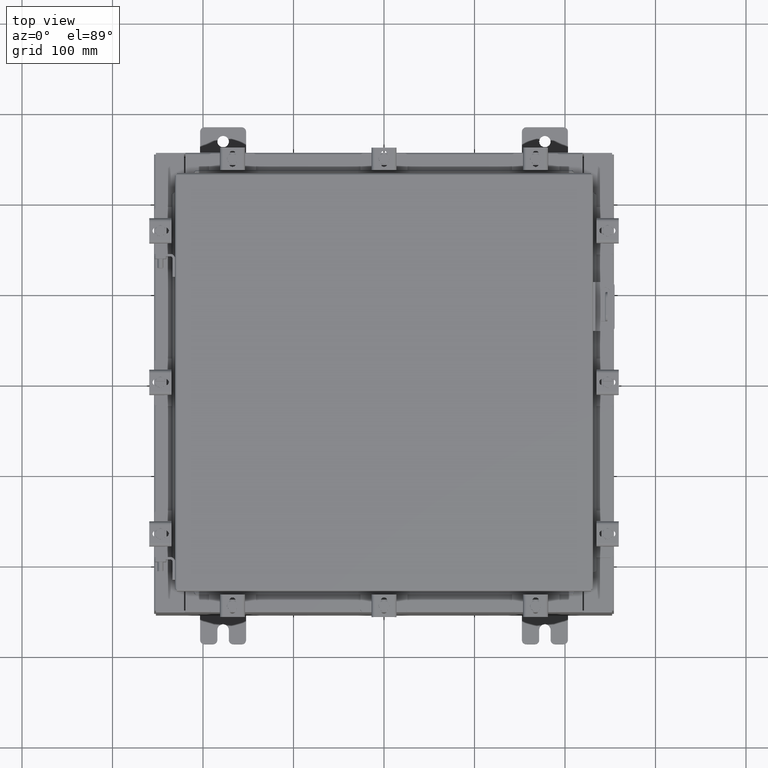
[diagram: clean part render]
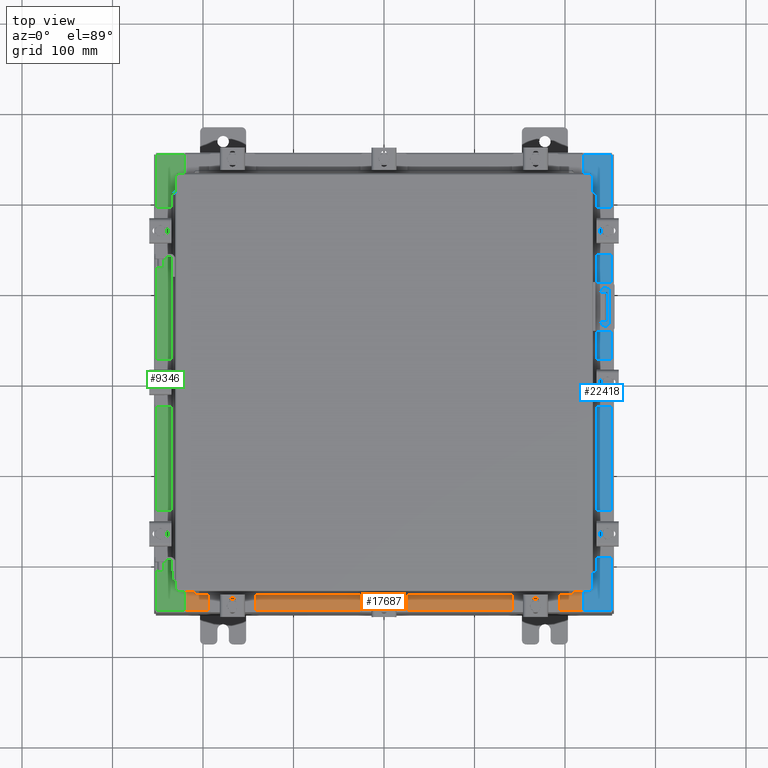
[diagram: same view with three faces highlighted in distinct colors, each labeled with its STEP entity id]
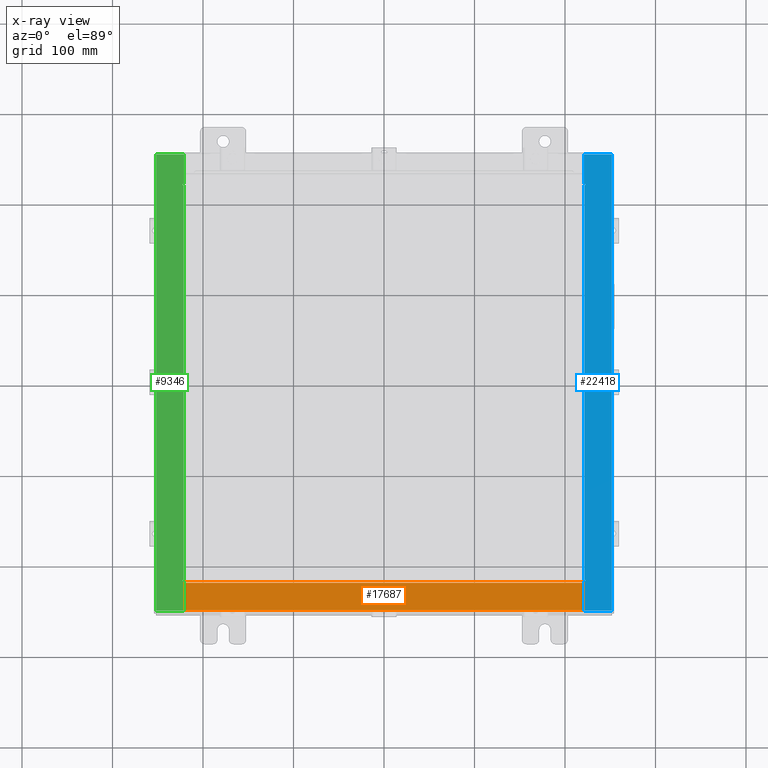
[diagram: x-ray of the same camera — body ghosted, the three highlighted faces saturated]
A machine part, top view with three faces highlighted in distinct colors.
The next image is the same camera in x-ray (body ghosted, the three faces saturated) — at least one of them is partly hidden behind the body in this view.
Their STEP definitions:

[orange] entity #17687 — the highlighted planar face has unit normal (-0, -0, 1).
#217 = EDGE_CURVE ( 'NONE', #20153, #8931, #19345, .T. ) ;
#790 = ORIENTED_EDGE ( 'NONE', *, *, #8295, .F. ) ;
#1097 = VECTOR ( 'NONE', #22316, 39.37007874015748100 ) ;
#3369 = CARTESIAN_POINT ( 'NONE',  ( 8.637200000000000000, -1.287299999999999900, 4.000000000000004400 ) ) ;
#3478 = VECTOR ( 'NONE', #14065, 39.37007874015748100 ) ;
#4583 = VERTEX_POINT ( 'NONE', #14635 ) ;
#4813 = ORIENTED_EDGE ( 'NONE', *, *, #217, .F. ) ;
#4828 = VECTOR ( 'NONE', #14450, 39.37007874015748100 ) ;
#7943 = CARTESIAN_POINT ( 'NONE',  ( -2.773851121247567100E-018, -0.08770000000000000000, 4.000000000000000900 ) ) ;
#8295 = EDGE_CURVE ( 'NONE', #10488, #20153, #22083, .T. ) ;
#8716 = CARTESIAN_POINT ( 'NONE',  ( 8.637200000000000000, -1.300299999999999800, 4.000000000000004400 ) ) ;
#8755 = LINE ( 'NONE', #10126, #1097 ) ;
#8931 = VERTEX_POINT ( 'NONE', #20531 ) ;
#9593 = DIRECTION ( 'NONE',  ( 0.0000000000000000000, 3.566381192773190000E-015, 1.000000000000000000 ) ) ;
#10126 = CARTESIAN_POINT ( 'NONE',  ( -8.637200000000000000, -0.07469999999999973900, 4.000000000000000000 ) ) ;
#10488 = VERTEX_POINT ( 'NONE', #15904 ) ;
#11515 = VECTOR ( 'NONE', #18354, 39.37007874015748100 ) ;
#12523 = EDGE_LOOP ( 'NONE', ( #16459, #4813, #790, #14875 ) ) ;
#14065 = DIRECTION ( 'NONE',  ( -0.0000000000000000000, -1.000000000000000000, 3.566381192773190000E-015 ) ) ;
#14319 = EDGE_CURVE ( 'NONE', #10488, #4583, #17807, .T. ) ;
#14450 = DIRECTION ( 'NONE',  ( -1.000000000000000000, 0.0000000000000000000, 0.0000000000000000000 ) ) ;
#14474 = CARTESIAN_POINT ( 'NONE',  ( 8.637200000000000000, -1.287299999999999900, 4.000000000000003600 ) ) ;
#14635 = CARTESIAN_POINT ( 'NONE',  ( -8.637200000000000000, -0.08770000000000000000, 4.000000000000000000 ) ) ;
#14875 = ORIENTED_EDGE ( 'NONE', *, *, #14319, .T. ) ;
#15145 = FACE_OUTER_BOUND ( 'NONE', #12523, .T. ) ;
#15904 = CARTESIAN_POINT ( 'NONE',  ( 8.637200000000000000, -0.08769999999999965300, 4.000000000000000000 ) ) ;
#16459 = ORIENTED_EDGE ( 'NONE', *, *, #20023, .F. ) ;
#17687 = ADVANCED_FACE ( 'NONE', ( #15145 ), #20049, .T. ) ;
#17807 = LINE ( 'NONE', #7943, #11515 ) ;
#18354 = DIRECTION ( 'NONE',  ( -1.000000000000000000, 3.162886113166609200E-017, -1.128005754888089100E-031 ) ) ;
#18564 = AXIS2_PLACEMENT_3D ( 'NONE', #21710, #9593, #21796 ) ;
#19345 = LINE ( 'NONE', #14474, #4828 ) ;
#20023 = EDGE_CURVE ( 'NONE', #8931, #4583, #8755, .T. ) ;
#20049 = PLANE ( 'NONE',  #18564 ) ;
#20153 = VERTEX_POINT ( 'NONE', #3369 ) ;
#20531 = CARTESIAN_POINT ( 'NONE',  ( -8.637200000000000000, -1.287299999999999200, 4.000000000000004400 ) ) ;
#21710 = CARTESIAN_POINT ( 'NONE',  ( 0.0000000000000000000, 1.425992975200418500E-014, 4.000000000000000000 ) ) ;
#21796 = DIRECTION ( 'NONE',  ( 0.0000000000000000000, -1.000000000000000000, 3.566381192773190000E-015 ) ) ;
#22083 = LINE ( 'NONE', #8716, #3478 ) ;
#22316 = DIRECTION ( 'NONE',  ( -0.0000000000000000000, 1.000000000000000000, -3.566381192773190000E-015 ) ) ;

[blue] entity #22418 — the highlighted planar face has unit normal (-0, 0, -1).
#19 = CARTESIAN_POINT ( 'NONE',  ( 5.679009539018279500E-014, 9.925299999999996500, 7.925300000000071100 ) ) ;
#504 = EDGE_LOOP ( 'NONE', ( #20579, #8065, #14720, #18478, #13156, #19387, #21814, #1746, #4850, #20859, #18546, #19200 ) ) ;
#727 = LINE ( 'NONE', #7852, #18784 ) ;
#769 = LINE ( 'NONE', #6461, #19363 ) ;
#1463 = DIRECTION ( 'NONE',  ( -1.000000000000000000, 0.0000000000000000000, 0.0000000000000000000 ) ) ;
#1501 = VERTEX_POINT ( 'NONE', #9264 ) ;
#1537 = VERTEX_POINT ( 'NONE', #7240 ) ;
#1746 = ORIENTED_EDGE ( 'NONE', *, *, #7325, .F. ) ;
#1966 = CARTESIAN_POINT ( 'NONE',  ( 8.699700000000028400, 8.631099999999994700, 7.925300000000008900 ) ) ;
#2117 = EDGE_CURVE ( 'NONE', #10660, #14955, #16663, .T. ) ;
#2211 = DIRECTION ( 'NONE',  ( -0.0000000000000000000, -1.000000000000000000, -0.0000000000000000000 ) ) ;
#2236 = CARTESIAN_POINT ( 'NONE',  ( 5.679009539018279500E-014, -9.925300000000001800, 7.925300000000071100 ) ) ;
#2426 = EDGE_CURVE ( 'NONE', #10660, #9918, #769, .T. ) ;
#2499 = LINE ( 'NONE', #20727, #20540 ) ;
#2721 = VECTOR ( 'NONE', #13410, 39.37007874015748100 ) ;
#2739 = EDGE_CURVE ( 'NONE', #1501, #8294, #13870, .T. ) ;
#2862 = EDGE_CURVE ( 'NONE', #14574, #9918, #20967, .T. ) ;
#2870 = CARTESIAN_POINT ( 'NONE',  ( 8.699700000000030200, 9.578051238947307000E-016, 7.925300000000008900 ) ) ;
#3282 = DIRECTION ( 'NONE',  ( 1.000000000000000000, 0.0000000000000000000, 0.0000000000000000000 ) ) ;
#3391 = PLANE ( 'NONE',  #22097 ) ;
#3449 = EDGE_CURVE ( 'NONE', #8294, #8524, #727, .T. ) ;
#3459 = DIRECTION ( 'NONE',  ( 1.000000000000000000, 0.0000000000000000000, -7.132762385546378400E-015 ) ) ;
#3834 = LINE ( 'NONE', #7610, #17847 ) ;
#4334 = VECTOR ( 'NONE', #20176, 39.37007874015748100 ) ;
#4337 = EDGE_CURVE ( 'NONE', #6905, #13162, #9721, .T. ) ;
#4822 = CARTESIAN_POINT ( 'NONE',  ( 8.750050000000031900, -8.612425000000005300, 7.925300000000008900 ) ) ;
#4850 = ORIENTED_EDGE ( 'NONE', *, *, #6149, .F. ) ;
#5056 = AXIS2_PLACEMENT_3D ( 'NONE', #4822, #17073, #6581 ) ;
#5315 = DIRECTION ( 'NONE',  ( -1.000000000000000000, 0.0000000000000000000, 7.132762385546378400E-015 ) ) ;
#5564 = CARTESIAN_POINT ( 'NONE',  ( 8.750050000000031900, 8.631099999999994700, 7.925300000000008900 ) ) ;
#5753 = CARTESIAN_POINT ( 'NONE',  ( 8.750050000000031900, 8.612424999999992900, 7.925300000000008900 ) ) ;
#5845 = EDGE_CURVE ( 'NONE', #14955, #13162, #3834, .T. ) ;
#5880 = CARTESIAN_POINT ( 'NONE',  ( 9.912300000000028500, -9.925300000000001800, 7.925300000000000000 ) ) ;
#5949 = DIRECTION ( 'NONE',  ( -1.000000000000000000, 2.170286390199861100E-014, 0.0000000000000000000 ) ) ;
#6149 = EDGE_CURVE ( 'NONE', #8524, #9531, #2499, .T. ) ;
#6461 = CARTESIAN_POINT ( 'NONE',  ( 9.912300000000028500, -9.925300000000001800, 7.925300000000000000 ) ) ;
#6581 = DIRECTION ( 'NONE',  ( 1.000000000000000000, 0.0000000000000000000, 0.0000000000000000000 ) ) ;
#6724 = DIRECTION ( 'NONE',  ( -1.000000000000000000, 0.0000000000000000000, 7.132762385546378400E-015 ) ) ;
#6905 = VERTEX_POINT ( 'NONE', #16587 ) ;
#6996 = CARTESIAN_POINT ( 'NONE',  ( 5.679009539018279500E-014, 0.0000000000000000000, 7.925300000000071100 ) ) ;
#7240 = CARTESIAN_POINT ( 'NONE',  ( 8.699700000000030200, -8.631100000000005300, 7.925300000000008900 ) ) ;
#7325 = EDGE_CURVE ( 'NONE', #9531, #6905, #16961, .T. ) ;
#7518 = DIRECTION ( 'NONE',  ( 1.000000000000000000, 0.0000000000000000000, 0.0000000000000000000 ) ) ;
#7593 = DIRECTION ( 'NONE',  ( -0.0000000000000000000, 1.000000000000000000, -0.0000000000000000000 ) ) ;
#7610 = CARTESIAN_POINT ( 'NONE',  ( 8.699700000000030200, 9.578051238947307000E-016, 7.925300000000008900 ) ) ;
#7852 = CARTESIAN_POINT ( 'NONE',  ( 8.712700000000031900, -8.593750000000005300, 7.925300000000008900 ) ) ;
#8065 = ORIENTED_EDGE ( 'NONE', *, *, #21459, .T. ) ;
#8138 = CARTESIAN_POINT ( 'NONE',  ( 8.750050000000031900, 8.593749999999992900, 7.925300000000008900 ) ) ;
#8294 = VERTEX_POINT ( 'NONE', #10541 ) ;
#8524 = VERTEX_POINT ( 'NONE', #9252 ) ;
#8537 = CIRCLE ( 'NONE', #5056, 0.01867500000000058700 ) ;
#8547 = CARTESIAN_POINT ( 'NONE',  ( 8.750050000000031900, -8.593750000000005300, 7.925300000000008900 ) ) ;
#9015 = LINE ( 'NONE', #16685, #4334 ) ;
#9175 = VECTOR ( 'NONE', #5949, 39.37007874015748100 ) ;
#9252 = CARTESIAN_POINT ( 'NONE',  ( 8.712700000000031900, 8.593749999999994700, 7.925300000000008900 ) ) ;
#9264 = CARTESIAN_POINT ( 'NONE',  ( 8.750050000000031900, -8.593750000000005300, 7.925300000000008900 ) ) ;
#9531 = VERTEX_POINT ( 'NONE', #8138 ) ;
#9721 = LINE ( 'NONE', #5564, #9175 ) ;
#9918 = VERTEX_POINT ( 'NONE', #5880 ) ;
#10541 = CARTESIAN_POINT ( 'NONE',  ( 8.712700000000031900, -8.593750000000005300, 7.925300000000008900 ) ) ;
#10660 = VERTEX_POINT ( 'NONE', #16362 ) ;
#12821 = AXIS2_PLACEMENT_3D ( 'NONE', #5753, #18032, #7518 ) ;
#13156 = ORIENTED_EDGE ( 'NONE', *, *, #2117, .T. ) ;
#13162 = VERTEX_POINT ( 'NONE', #1966 ) ;
#13292 = CARTESIAN_POINT ( 'NONE',  ( 8.750050000000031900, -8.631100000000005300, 7.925300000000008900 ) ) ;
#13410 = DIRECTION ( 'NONE',  ( 1.100963394019027800E-016, -1.000000000000000000, -7.852910284722398000E-031 ) ) ;
#13870 = LINE ( 'NONE', #8547, #22566 ) ;
#14574 = VERTEX_POINT ( 'NONE', #22528 ) ;
#14720 = ORIENTED_EDGE ( 'NONE', *, *, #2862, .T. ) ;
#14955 = VERTEX_POINT ( 'NONE', #16553 ) ;
#15805 = DIRECTION ( 'NONE',  ( -7.132762385546378400E-015, 0.0000000000000000000, -1.000000000000000000 ) ) ;
#16109 = VECTOR ( 'NONE', #6724, 39.37007874015748100 ) ;
#16349 = VECTOR ( 'NONE', #3459, 39.37007874015748100 ) ;
#16362 = CARTESIAN_POINT ( 'NONE',  ( 9.912300000000028500, 9.925299999999991100, 7.925300000000000000 ) ) ;
#16553 = CARTESIAN_POINT ( 'NONE',  ( 8.699700000000028400, 9.925299999999992900, 7.925300000000008900 ) ) ;
#16587 = CARTESIAN_POINT ( 'NONE',  ( 8.750050000000031900, 8.631099999999994700, 7.925300000000008900 ) ) ;
#16663 = LINE ( 'NONE', #19, #16109 ) ;
#16685 = CARTESIAN_POINT ( 'NONE',  ( 8.699700000000030200, -8.631100000000005300, 7.925300000000008900 ) ) ;
#16700 = LINE ( 'NONE', #2870, #2721 ) ;
#16961 = CIRCLE ( 'NONE', #12821, 0.01867500000000058700 ) ;
#17073 = DIRECTION ( 'NONE',  ( 7.132762385546378400E-015, 0.0000000000000000000, 1.000000000000000000 ) ) ;
#17477 = FACE_OUTER_BOUND ( 'NONE', #504, .T. ) ;
#17847 = VECTOR ( 'NONE', #19834, 39.37007874015748100 ) ;
#18032 = DIRECTION ( 'NONE',  ( 7.132762385546378400E-015, 0.0000000000000000000, 1.000000000000000000 ) ) ;
#18478 = ORIENTED_EDGE ( 'NONE', *, *, #2426, .F. ) ;
#18481 = EDGE_CURVE ( 'NONE', #20670, #1501, #8537, .T. ) ;
#18546 = ORIENTED_EDGE ( 'NONE', *, *, #2739, .F. ) ;
#18784 = VECTOR ( 'NONE', #7593, 39.37007874015748100 ) ;
#19200 = ORIENTED_EDGE ( 'NONE', *, *, #18481, .F. ) ;
#19363 = VECTOR ( 'NONE', #2211, 39.37007874015748100 ) ;
#19387 = ORIENTED_EDGE ( 'NONE', *, *, #5845, .T. ) ;
#19834 = DIRECTION ( 'NONE',  ( 1.100963394019027800E-016, -1.000000000000000000, -7.852910284722398000E-031 ) ) ;
#20176 = DIRECTION ( 'NONE',  ( 1.000000000000000000, 2.170286390199955400E-014, 0.0000000000000000000 ) ) ;
#20540 = VECTOR ( 'NONE', #3282, 39.37007874015748100 ) ;
#20579 = ORIENTED_EDGE ( 'NONE', *, *, #22021, .F. ) ;
#20670 = VERTEX_POINT ( 'NONE', #13292 ) ;
#20727 = CARTESIAN_POINT ( 'NONE',  ( 8.712700000000031900, 8.593749999999994700, 7.925300000000008900 ) ) ;
#20859 = ORIENTED_EDGE ( 'NONE', *, *, #3449, .F. ) ;
#20967 = LINE ( 'NONE', #2236, #16349 ) ;
#21459 = EDGE_CURVE ( 'NONE', #1537, #14574, #16700, .T. ) ;
#21814 = ORIENTED_EDGE ( 'NONE', *, *, #4337, .F. ) ;
#22021 = EDGE_CURVE ( 'NONE', #1537, #20670, #9015, .T. ) ;
#22097 = AXIS2_PLACEMENT_3D ( 'NONE', #6996, #15805, #5315 ) ;
#22418 = ADVANCED_FACE ( 'NONE', ( #17477 ), #3391, .F. ) ;
#22528 = CARTESIAN_POINT ( 'NONE',  ( 8.699700000000030200, -9.925300000000001800, 7.925300000000008900 ) ) ;
#22566 = VECTOR ( 'NONE', #1463, 39.37007874015748100 ) ;

[green] entity #9346 — the highlighted planar face has unit normal (0, 0, -1).
#654 = DIRECTION ( 'NONE',  ( 7.132762385546365800E-015, 0.0000000000000000000, -1.000000000000000000 ) ) ;
#887 = EDGE_CURVE ( 'NONE', #5234, #19267, #12489, .T. ) ;
#952 = VERTEX_POINT ( 'NONE', #13418 ) ;
#1201 = VECTOR ( 'NONE', #14094, 39.37007874015748100 ) ;
#1410 = CARTESIAN_POINT ( 'NONE',  ( -8.750050000000030100, -8.631100000000008900, 7.925300000000007100 ) ) ;
#1446 = VECTOR ( 'NONE', #15241, 39.37007874015748100 ) ;
#1739 = EDGE_CURVE ( 'NONE', #9904, #19267, #13922, .T. ) ;
#2356 = EDGE_CURVE ( 'NONE', #12969, #9904, #16372, .T. ) ;
#2443 = LINE ( 'NONE', #15170, #20483 ) ;
#2856 = DIRECTION ( 'NONE',  ( 1.000000000000000000, -2.170286390199814100E-014, 2.170286390199814100E-014 ) ) ;
#3221 = VECTOR ( 'NONE', #6322, 39.37007874015748100 ) ;
#3415 = DIRECTION ( 'NONE',  ( -7.132762385546365800E-015, -0.0000000000000000000, 1.000000000000000000 ) ) ;
#3626 = VERTEX_POINT ( 'NONE', #18951 ) ;
#3759 = LINE ( 'NONE', #4560, #3221 ) ;
#4560 = CARTESIAN_POINT ( 'NONE',  ( -8.750050000000030100, 8.593749999999998200, 7.925300000000007100 ) ) ;
#4737 = CARTESIAN_POINT ( 'NONE',  ( -8.699700000000026600, -9.578051238947299100E-016, 7.925300000000008900 ) ) ;
#5234 = VERTEX_POINT ( 'NONE', #16445 ) ;
#5882 = CARTESIAN_POINT ( 'NONE',  ( -8.750050000000030100, 8.631099999999998200, 7.925300000000008900 ) ) ;
#5916 = DIRECTION ( 'NONE',  ( -0.0000000000000000000, -1.000000000000000000, -0.0000000000000000000 ) ) ;
#6145 = VERTEX_POINT ( 'NONE', #17229 ) ;
#6272 = AXIS2_PLACEMENT_3D ( 'NONE', #13923, #3415, #15688 ) ;
#6286 = CIRCLE ( 'NONE', #6272, 0.01867499999999949400 ) ;
#6322 = DIRECTION ( 'NONE',  ( 1.000000000000000000, 0.0000000000000000000, 0.0000000000000000000 ) ) ;
#6418 = AXIS2_PLACEMENT_3D ( 'NONE', #15907, #16674, #21978 ) ;
#6639 = LINE ( 'NONE', #10424, #15430 ) ;
#7377 = ORIENTED_EDGE ( 'NONE', *, *, #11182, .F. ) ;
#7437 = CARTESIAN_POINT ( 'NONE',  ( -8.699700000000026600, -9.578051238947299100E-016, 7.925300000000008900 ) ) ;
#7702 = VECTOR ( 'NONE', #2856, 39.37007874015748100 ) ;
#7961 = CARTESIAN_POINT ( 'NONE',  ( -1.098862002691304900E-013, -9.925300000000053300, 7.925300000000071100 ) ) ;
#8121 = FACE_OUTER_BOUND ( 'NONE', #10592, .T. ) ;
#8216 = DIRECTION ( 'NONE',  ( -1.000000000000000000, -2.170286390199908100E-014, -2.170286390199908100E-014 ) ) ;
#8936 = CARTESIAN_POINT ( 'NONE',  ( -8.750050000000030100, 8.593749999999998200, 7.925300000000008900 ) ) ;
#9294 = ORIENTED_EDGE ( 'NONE', *, *, #22078, .F. ) ;
#9346 = ADVANCED_FACE ( 'NONE', ( #8121 ), #12823, .F. ) ;
#9396 = VERTEX_POINT ( 'NONE', #11365 ) ;
#9414 = ORIENTED_EDGE ( 'NONE', *, *, #19006, .T. ) ;
#9486 = ORIENTED_EDGE ( 'NONE', *, *, #19752, .F. ) ;
#9602 = VECTOR ( 'NONE', #5916, 39.37007874015748100 ) ;
#9904 = VERTEX_POINT ( 'NONE', #21560 ) ;
#10022 = CARTESIAN_POINT ( 'NONE',  ( -9.912300000000028500, 9.925299999999996500, 7.925300000000000000 ) ) ;
#10424 = CARTESIAN_POINT ( 'NONE',  ( -9.912300000000028500, 9.925299999999998200, 7.925300000000000000 ) ) ;
#10592 = EDGE_LOOP ( 'NONE', ( #12727, #11406, #9414, #18022, #15402, #17977, #11547, #13095, #7377, #9486, #9294, #17398 ) ) ;
#10759 = LINE ( 'NONE', #4737, #1446 ) ;
#11136 = CARTESIAN_POINT ( 'NONE',  ( -5.679009539018269400E-014, 0.0000000000000000000, 7.925300000000071100 ) ) ;
#11182 = EDGE_CURVE ( 'NONE', #6145, #12969, #19789, .T. ) ;
#11267 = CARTESIAN_POINT ( 'NONE',  ( -5.679009539018269400E-014, 9.925299999999998200, 7.925300000000071100 ) ) ;
#11276 = LINE ( 'NONE', #11267, #14823 ) ;
#11365 = CARTESIAN_POINT ( 'NONE',  ( -9.912300000000028500, -9.925299999999998200, 7.925300000000000000 ) ) ;
#11394 = AXIS2_PLACEMENT_3D ( 'NONE', #11136, #654, #12911 ) ;
#11406 = ORIENTED_EDGE ( 'NONE', *, *, #17853, .T. ) ;
#11547 = ORIENTED_EDGE ( 'NONE', *, *, #1739, .F. ) ;
#11940 = VECTOR ( 'NONE', #14315, 39.37007874015748100 ) ;
#12033 = CARTESIAN_POINT ( 'NONE',  ( -8.699700000000028400, 9.925299999999998200, 7.925300000000008900 ) ) ;
#12195 = DIRECTION ( 'NONE',  ( -0.0000000000000000000, 1.000000000000000000, -0.0000000000000000000 ) ) ;
#12489 = LINE ( 'NONE', #7437, #11940 ) ;
#12727 = ORIENTED_EDGE ( 'NONE', *, *, #15078, .F. ) ;
#12823 = PLANE ( 'NONE',  #11394 ) ;
#12911 = DIRECTION ( 'NONE',  ( -1.000000000000000000, 0.0000000000000000000, -7.132762385546365800E-015 ) ) ;
#12969 = VERTEX_POINT ( 'NONE', #22067 ) ;
#13095 = ORIENTED_EDGE ( 'NONE', *, *, #2356, .F. ) ;
#13168 = LINE ( 'NONE', #7961, #22373 ) ;
#13418 = CARTESIAN_POINT ( 'NONE',  ( -8.699700000000028400, 8.631100000000000000, 7.925300000000008900 ) ) ;
#13922 = LINE ( 'NONE', #1410, #7702 ) ;
#13923 = CARTESIAN_POINT ( 'NONE',  ( -8.750050000000030100, 8.612424999999998200, 7.925300000000007100 ) ) ;
#14094 = DIRECTION ( 'NONE',  ( -1.000000000000000000, 0.0000000000000000000, 0.0000000000000000000 ) ) ;
#14315 = DIRECTION ( 'NONE',  ( -1.100963394019027400E-016, 1.000000000000000000, -7.852910284722381300E-031 ) ) ;
#14805 = LINE ( 'NONE', #18201, #9602 ) ;
#14823 = VECTOR ( 'NONE', #16530, 39.37007874015748100 ) ;
#15078 = EDGE_CURVE ( 'NONE', #952, #17640, #2443, .T. ) ;
#15170 = CARTESIAN_POINT ( 'NONE',  ( -8.699700000000028400, 8.631100000000000000, 7.925300000000008900 ) ) ;
#15241 = DIRECTION ( 'NONE',  ( -1.100963394019027400E-016, 1.000000000000000000, -7.852910284722381300E-031 ) ) ;
#15402 = ORIENTED_EDGE ( 'NONE', *, *, #21351, .T. ) ;
#15430 = VECTOR ( 'NONE', #12195, 39.37007874015748100 ) ;
#15688 = DIRECTION ( 'NONE',  ( 1.000000000000000000, 0.0000000000000000000, 0.0000000000000000000 ) ) ;
#15907 = CARTESIAN_POINT ( 'NONE',  ( -8.750050000000030100, -8.612425000000007100, 7.925300000000007100 ) ) ;
#16111 = VERTEX_POINT ( 'NONE', #12033 ) ;
#16372 = CIRCLE ( 'NONE', #6418, 0.01867499999999949400 ) ;
#16445 = CARTESIAN_POINT ( 'NONE',  ( -8.699700000000026600, -9.925300000000005300, 7.925300000000008900 ) ) ;
#16530 = DIRECTION ( 'NONE',  ( -1.000000000000000000, 0.0000000000000000000, -7.132762385546365800E-015 ) ) ;
#16674 = DIRECTION ( 'NONE',  ( -7.132762385546365800E-015, -0.0000000000000000000, 1.000000000000000000 ) ) ;
#16745 = VERTEX_POINT ( 'NONE', #8936 ) ;
#17229 = CARTESIAN_POINT ( 'NONE',  ( -8.712700000000030100, -8.593750000000008900, 7.925300000000007100 ) ) ;
#17358 = EDGE_CURVE ( 'NONE', #9396, #20873, #6639, .T. ) ;
#17398 = ORIENTED_EDGE ( 'NONE', *, *, #21031, .F. ) ;
#17640 = VERTEX_POINT ( 'NONE', #5882 ) ;
#17853 = EDGE_CURVE ( 'NONE', #952, #16111, #10759, .T. ) ;
#17977 = ORIENTED_EDGE ( 'NONE', *, *, #887, .T. ) ;
#18022 = ORIENTED_EDGE ( 'NONE', *, *, #17358, .F. ) ;
#18201 = CARTESIAN_POINT ( 'NONE',  ( -8.712700000000030100, 8.593750000000000000, 7.925300000000007100 ) ) ;
#18809 = CARTESIAN_POINT ( 'NONE',  ( -8.699700000000026600, -8.631100000000007100, 7.925300000000008900 ) ) ;
#18951 = CARTESIAN_POINT ( 'NONE',  ( -8.712700000000030100, 8.593749999999998200, 7.925300000000007100 ) ) ;
#19006 = EDGE_CURVE ( 'NONE', #16111, #20873, #11276, .T. ) ;
#19267 = VERTEX_POINT ( 'NONE', #18809 ) ;
#19752 = EDGE_CURVE ( 'NONE', #3626, #6145, #14805, .T. ) ;
#19789 = LINE ( 'NONE', #21038, #1201 ) ;
#20171 = DIRECTION ( 'NONE',  ( 1.000000000000000000, -5.349571789159775100E-015, 7.132762385546365800E-015 ) ) ;
#20483 = VECTOR ( 'NONE', #8216, 39.37007874015748100 ) ;
#20873 = VERTEX_POINT ( 'NONE', #10022 ) ;
#21031 = EDGE_CURVE ( 'NONE', #17640, #16745, #6286, .T. ) ;
#21038 = CARTESIAN_POINT ( 'NONE',  ( -8.712700000000030100, -8.593750000000008900, 7.925300000000007100 ) ) ;
#21351 = EDGE_CURVE ( 'NONE', #9396, #5234, #13168, .T. ) ;
#21560 = CARTESIAN_POINT ( 'NONE',  ( -8.750050000000030100, -8.631100000000008900, 7.925300000000008900 ) ) ;
#21978 = DIRECTION ( 'NONE',  ( 1.000000000000000000, 0.0000000000000000000, 0.0000000000000000000 ) ) ;
#22067 = CARTESIAN_POINT ( 'NONE',  ( -8.750050000000030100, -8.593750000000008900, 7.925300000000008900 ) ) ;
#22078 = EDGE_CURVE ( 'NONE', #16745, #3626, #3759, .T. ) ;
#22373 = VECTOR ( 'NONE', #20171, 39.37007874015748100 ) ;